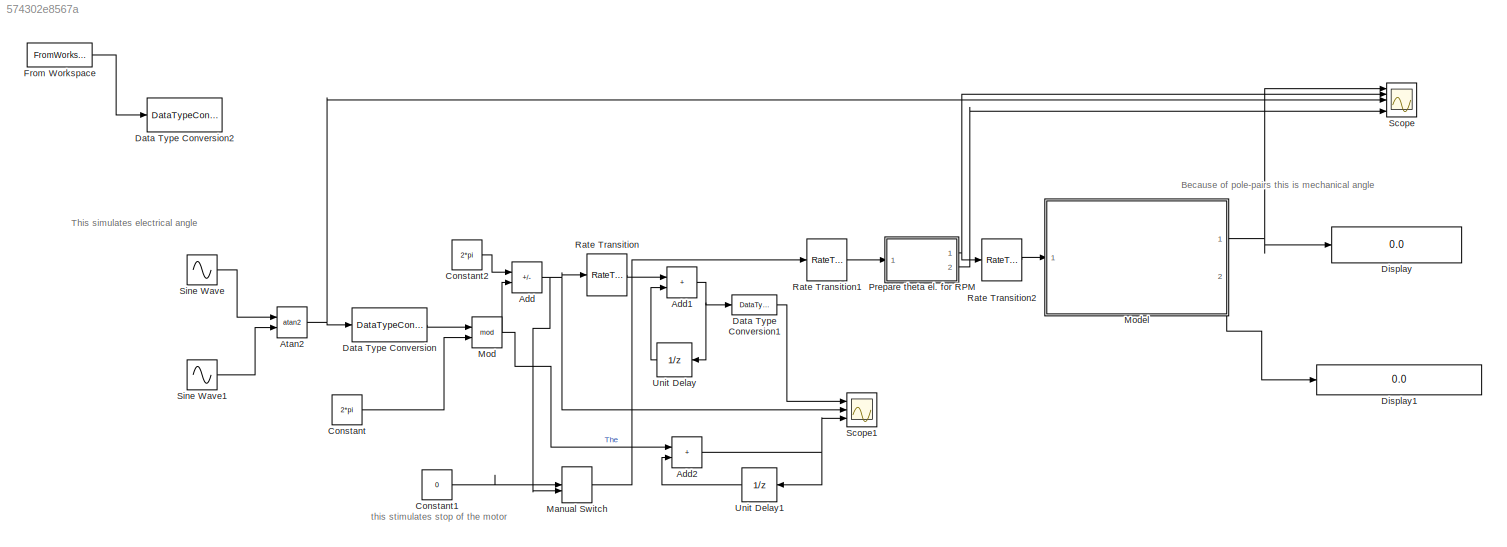
MODEL slx_574302e8567a
KIND model
CONFIG AbsTol = auto
CONFIG EnableMultiTasking = off
CONFIG FixedStep = 200e-6
CONFIG MaxStep = auto
CONFIG MinStep = auto
CONFIG RelTol = 1e-3
CONFIG SampleTimeConstraint = Unconstrained
CONFIG SolverName = FixedStepDiscrete
CONFIG StartTime = 0.0
CONFIG StopTime = 27
BLOCK [Sum] Add
  IconShape = rectangular
  Inputs = +-
  Ports = [2, 1]
BLOCK [Sum] Add1
  IconShape = rectangular
  Ports = [2, 1]
BLOCK [Sum] Add2
  IconShape = rectangular
  Ports = [2, 1]
BLOCK [Trigonometry] Atan2
  Operator = atan2
  Ports = [2, 1]
BLOCK [Constant] Constant
  OutDataTypeStr = single
  Value = 2*pi
BLOCK [Constant] Constant1
  OutDataTypeStr = single
  Value = 0
BLOCK [Constant] Constant2
  OutDataTypeStr = Inherit: Inherit via back propagation
  Value = 2*pi
BLOCK [DataTypeConversion] Data Type Conversion
  OutDataTypeStr = single
  RndMeth = Floor
  SaturateOnIntegerOverflow = off
BLOCK [DataTypeConversion] Data Type Conversion1
  OutDataTypeStr = single
  RndMeth = Floor
  SaturateOnIntegerOverflow = off
BLOCK [DataTypeConversion] Data Type Conversion2
  Commented = on
  OutDataTypeStr = single
  RndMeth = Floor
  SaturateOnIntegerOverflow = off
BLOCK [Display] Display
  Decimation = 1
  Ports = [1]
BLOCK [Display] Display1
  Decimation = 1
  Format = long
  Ports = [1]
BLOCK [FromWorkspace] From Workspace
  Commented = on
  OutputAfterFinalValue = Holding final value
  VariableName = Sig_theta_el_m_db
BLOCK [ManualSwitch] Manual Switch
  CurrentSetting = 0
BLOCK [Math] Mod
  Operator = mod
  Ports = [2, 1]
BLOCK [ModelReference] Model
  CachedPortDiscreteRates = [-1]
  ModelNameDialog = CalcSpinSpeednDir.slx
  ModelReferenceVersion = 3.13
  Ports = [1, 2]
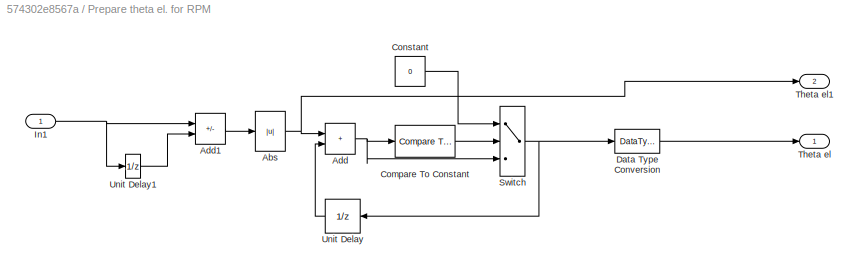
BLOCK [SubSystem] Prepare theta el. for RPM
  Ports = [1, 2]
  RequestExecContextInheritance = off
BLOCK [Abs] Prepare theta el. for RPM/Abs
  SaturateOnIntegerOverflow = off
BLOCK [Sum] Prepare theta el. for RPM/Add
  IconShape = rectangular
  Ports = [2, 1]
BLOCK [Sum] Prepare theta el. for RPM/Add1
  IconShape = rectangular
  Inputs = +-
  Ports = [2, 1]
BLOCK [Reference] Prepare theta el. for RPM/Compare To Constant  REF=simulink/Logic and Bit
Operations/Compare
To Constant
  Ports = [1, 1]
  SourceBlock = simulink/Logic and Bit\nOperations/Compare\nTo Constant
  SourceProductBaseCode = SL
  SourceType = Compare To Constant
BLOCK [Constant] Prepare theta el. for RPM/Constant
  OutDataTypeStr = single
  Value = 0
BLOCK [DataTypeConversion] Prepare theta el. for RPM/Data Type Conversion
  OutDataTypeStr = single
  RndMeth = Floor
  SaturateOnIntegerOverflow = off
BLOCK [Inport] Prepare theta el. for RPM/In1
BLOCK [Switch] Prepare theta el. for RPM/Switch
  InputSameDT = off
  OutDataTypeStr = single
  SaturateOnIntegerOverflow = off
  Threshold = 1
BLOCK [Outport] Prepare theta el. for RPM/Theta el
BLOCK [Outport] Prepare theta el. for RPM/Theta el1
  Port = 2
BLOCK [UnitDelay] Prepare theta el. for RPM/Unit Delay
  HasFrameUpgradeWarning = on
  NameLocation = top
  SampleTime = -1
BLOCK [UnitDelay] Prepare theta el. for RPM/Unit Delay1
  HasFrameUpgradeWarning = on
  SampleTime = -1
BLOCK [RateTransition] Rate Transition
BLOCK [RateTransition] Rate Transition1
BLOCK [RateTransition] Rate Transition2
BLOCK [Scope] Scope
  Floating = off
  NumInputPorts = 5
  Ports = [5]
  ScopeSpecificationString = Simulink.scopes.TimeScopeBlockCfg('CurrentConfiguration', extmgr.ConfigurationSet(extmgr.Configuration('Core','General UI',true),extmgr.Configuration('Core','Source UI',true),extmgr.Configuration('Sources','WiredSimulink',true,'DataLoggingVariableName','ScopeData1'),extmgr.Configuration('Visuals','Time Domain',true,'SerializedDisplays',{struct('MinYLimReal','-22.5','MaxYLimReal','202.5','YLabelRea...<+3974ch>
BLOCK [Scope] Scope1
  Floating = off
  NumInputPorts = 3
  Ports = [3]
  ScopeSpecificationString = Simulink.scopes.TimeScopeBlockCfg('CurrentConfiguration', extmgr.ConfigurationSet(extmgr.Configuration('Core','General UI',true),extmgr.Configuration('Core','Source UI',true),extmgr.Configuration('Sources','WiredSimulink',true,'DataLoggingVariableName','ScopeData1'),extmgr.Configuration('Visuals','Time Domain',true,'SerializedDisplays',{struct('MinYLimReal','-1964.36928','MaxYLimReal','17742.1554'...<+2918ch>
BLOCK [Sin] Sine Wave
  Frequency = 50
  Ports = [0, 1]
  SampleTime = 0
BLOCK [Sin] Sine Wave1
  Frequency = 50
  Phase = pi/2
  Ports = [0, 1]
  SampleTime = 0
BLOCK [UnitDelay] Unit Delay
  HasFrameUpgradeWarning = on
  NameLocation = top
  SampleTime = -1
BLOCK [UnitDelay] Unit Delay1
  HasFrameUpgradeWarning = on
  NameLocation = top
  SampleTime = -1
ANNOTATION (root): Because of pole-pairs this is mechanical angle
ANNOTATION (root): This simulates electrical angle
ANNOTATION (root): this stimulates stop of the motor
NET Add1:1 -> Data Type Conversion1:1, Unit Delay:1
NET Add2:1 -> Scope1:3, Unit Delay1:1
NET Add:1 -> Manual Switch:2, Rate Transition:1, Scope1:2
NET Atan2:1 -> Data Type Conversion:1, Scope:3
LINE Constant1:1 -> Manual Switch:1
LINE Constant2:1 -> Add:1
LINE Constant:1 -> Mod:2
LINE Data Type Conversion1:1 -> Scope1:1
LINE Data Type Conversion:1 -> Mod:1
LINE From Workspace:1 -> Data Type Conversion2:1
LINE Manual Switch:1 -> Rate Transition1:1
NET Mod:1 -> Add2:1, Add:2
NET Model:1 -> Display:1, Scope:1
LINE Model:2 -> Display1:1
NET Prepare theta el. for RPM/Abs:1 -> Prepare theta el. for RPM/Add:1, Prepare theta el. for RPM/Theta el1:1
LINE Prepare theta el. for RPM/Add1:1 -> Prepare theta el. for RPM/Abs:1
NET Prepare theta el. for RPM/Add:1 -> Prepare theta el. for RPM/Compare To Constant:1, Prepare theta el. for RPM/Switch:3
LINE Prepare theta el. for RPM/Compare To Constant:1 -> Prepare theta el. for RPM/Switch:2
LINE Prepare theta el. for RPM/Constant:1 -> Prepare theta el. for RPM/Switch:1
LINE Prepare theta el. for RPM/Data Type Conversion:1 -> Prepare theta el. for RPM/Theta el:1
NET Prepare theta el. for RPM/In1:1 -> Prepare theta el. for RPM/Add1:1, Prepare theta el. for RPM/Unit Delay1:1
NET Prepare theta el. for RPM/Switch:1 -> Prepare theta el. for RPM/Data Type Conversion:1, Prepare theta el. for RPM/Unit Delay:1
LINE Prepare theta el. for RPM/Unit Delay1:1 -> Prepare theta el. for RPM/Add1:2
LINE Prepare theta el. for RPM/Unit Delay:1 -> Prepare theta el. for RPM/Add:2
NET Prepare theta el. for RPM:1 -> Rate Transition2:1, Scope:2
LINE Prepare theta el. for RPM:2 -> Scope:5
LINE Rate Transition1:1 -> Prepare theta el. for RPM:1
LINE Rate Transition2:1 -> Model:1
LINE Rate Transition:1 -> Add1:1
LINE Sine Wave1:1 -> Atan2:2
LINE Sine Wave:1 -> Atan2:1
LINE Unit Delay1:1 -> Add2:2
LINE Unit Delay:1 -> Add1:2
note: NET lines group one-source signal fan-out (src -> all destinations, sorted); 1:1 wires keep LINE
